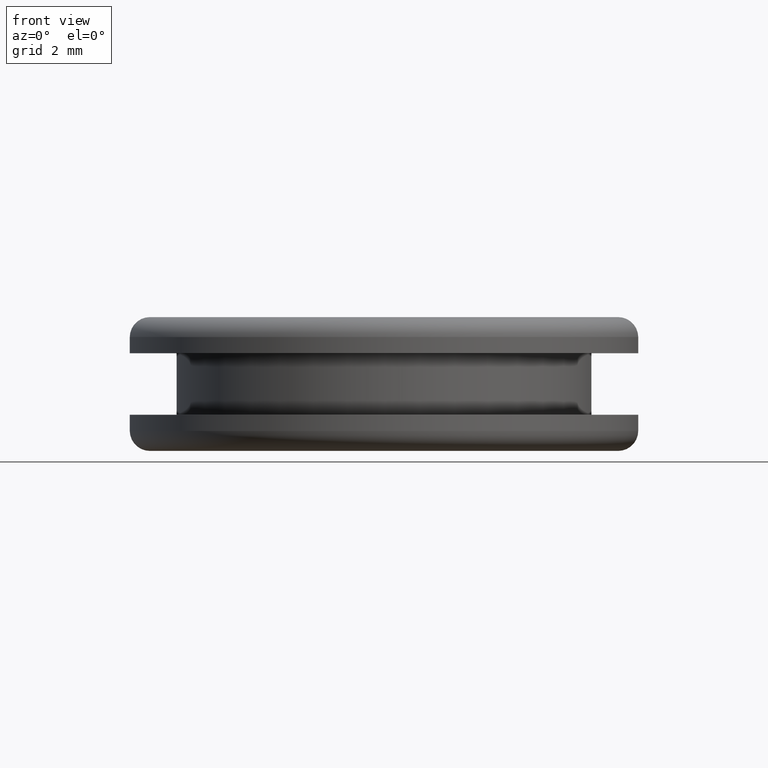
[diagram: clean part render]
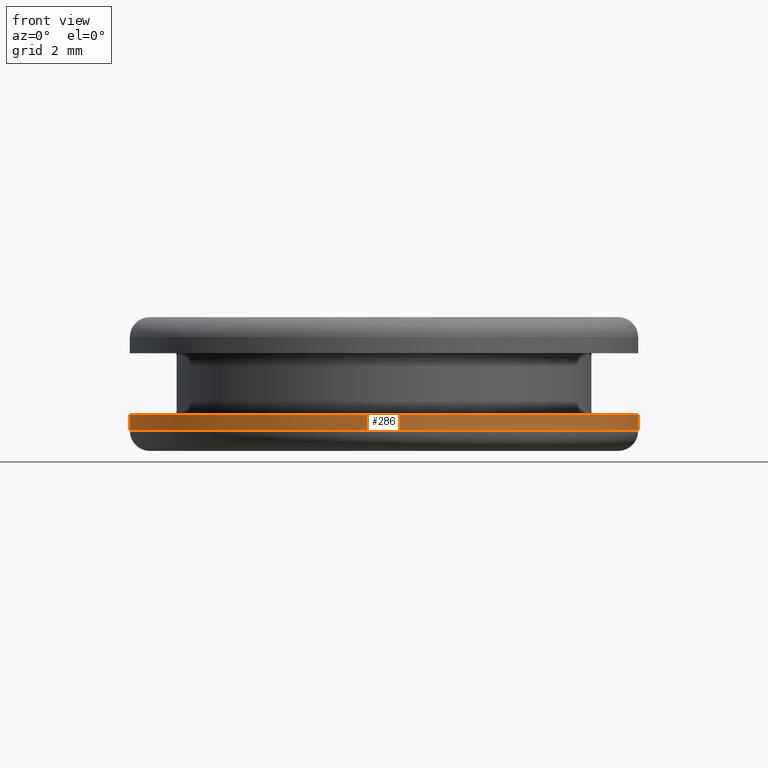
[diagram: same view with one face highlighted and labeled with its STEP entity id]
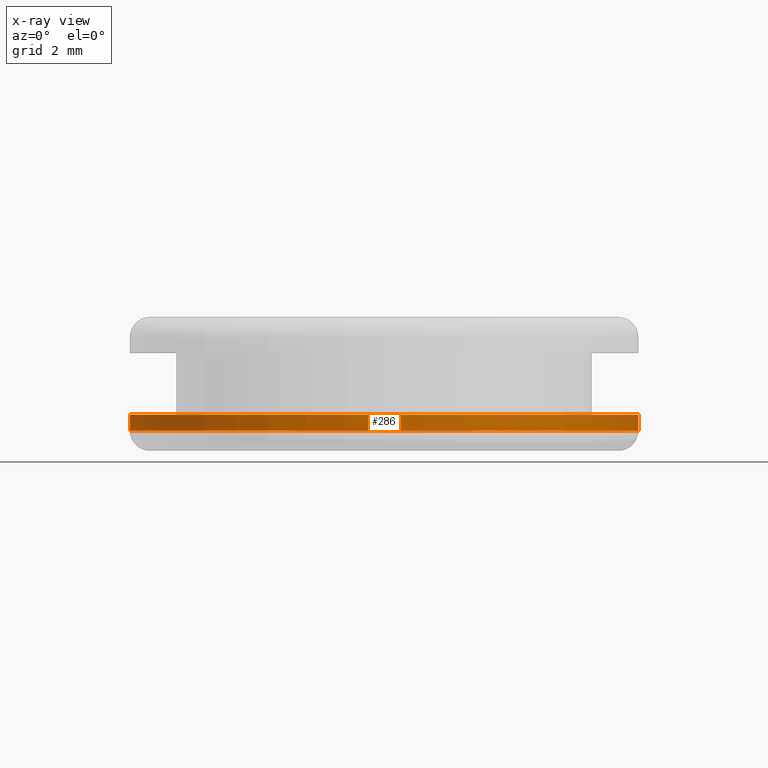
[diagram: x-ray of the same camera — body ghosted, the highlighted face saturated]
A machine part, front view. The second image highlights one B-rep face of the part: STEP entity #286.
The next image is the same camera in x-ray: the body ghosted, the highlighted face saturated — about 0% of this face is hidden behind the body in this view.
In plain terms, the highlighted cylindrical surface (partial cylindrical patch) has radius 9.5 mm, axis along (0, 0, -1).
Its self-contained STEP definition (entity closure, byte-faithful):
#18 = CYLINDRICAL_SURFACE ( 'NONE', #232, 9.499999999876246500 ) ;
#27 = CARTESIAN_POINT ( 'NONE',  ( 115.5608550661926400, 1.163414459174830700E-015, 0.0000000000000000000 ) ) ;
#47 = CARTESIAN_POINT ( 'NONE',  ( 115.5608550661927900, 1.163414459174849600E-015, 139.0502122310740000 ) ) ;
#55 = VECTOR ( 'NONE', #338, 1000.000000000000000 ) ;
#72 = FACE_OUTER_BOUND ( 'NONE', #189, .T. ) ;
#77 = EDGE_CURVE ( 'NONE', #404, #236, #246, .T. ) ;
#79 = DIRECTION ( 'NONE',  ( -1.000000000000000000, 0.0000000000000000000, 0.0000000000000000000 ) ) ;
#102 = EDGE_CURVE ( 'NONE', #391, #354, #237, .T. ) ;
#118 = CARTESIAN_POINT ( 'NONE',  ( 106.0608550663163900, 0.0000000000000000000, 0.0000000000000000000 ) ) ;
#121 = DIRECTION ( 'NONE',  ( 0.0000000000000000000, 0.0000000000000000000, -1.000000000000000000 ) ) ;
#128 = AXIS2_PLACEMENT_3D ( 'NONE', #418, #196, #452 ) ;
#155 = DIRECTION ( 'NONE',  ( 0.0000000000000000000, 0.0000000000000000000, -1.000000000000000000 ) ) ;
#163 = ORIENTED_EDGE ( 'NONE', *, *, #102, .T. ) ;
#167 = ORIENTED_EDGE ( 'NONE', *, *, #351, .F. ) ;
#174 = AXIS2_PLACEMENT_3D ( 'NONE', #344, #121, #383 ) ;
#189 = EDGE_LOOP ( 'NONE', ( #204, #281, #163, #167 ) ) ;
#196 = DIRECTION ( 'NONE',  ( 0.0000000000000000000, 0.0000000000000000000, -1.000000000000000000 ) ) ;
#198 = CARTESIAN_POINT ( 'NONE',  ( 96.56085506644029700, 0.0000000000000000000, 138.4502122310740000 ) ) ;
#204 = ORIENTED_EDGE ( 'NONE', *, *, #77, .F. ) ;
#230 = CARTESIAN_POINT ( 'NONE',  ( 96.56085506644014100, 0.0000000000000000000, 0.0000000000000000000 ) ) ;
#232 = AXIS2_PLACEMENT_3D ( 'NONE', #118, #155, #79 ) ;
#236 = VERTEX_POINT ( 'NONE', #408 ) ;
#237 = LINE ( 'NONE', #230, #403 ) ;
#246 = LINE ( 'NONE', #27, #55 ) ;
#269 = CARTESIAN_POINT ( 'NONE',  ( 96.56085506643999800, 0.0000000000000000000, 139.0502122310740000 ) ) ;
#276 = EDGE_CURVE ( 'NONE', #404, #391, #305, .T. ) ;
#281 = ORIENTED_EDGE ( 'NONE', *, *, #276, .T. ) ;
#286 = ADVANCED_FACE ( 'NONE', ( #72 ), #18, .T. ) ;
#297 = CIRCLE ( 'NONE', #174, 9.499999999876093800 ) ;
#305 = CIRCLE ( 'NONE', #128, 9.499999999876399300 ) ;
#336 = DIRECTION ( 'NONE',  ( 0.0000000000000000000, 0.0000000000000000000, -1.000000000000000000 ) ) ;
#338 = DIRECTION ( 'NONE',  ( 0.0000000000000000000, 0.0000000000000000000, -1.000000000000000000 ) ) ;
#344 = CARTESIAN_POINT ( 'NONE',  ( 106.0608550663163900, 0.0000000000000000000, 138.4502122310740000 ) ) ;
#351 = EDGE_CURVE ( 'NONE', #236, #354, #297, .T. ) ;
#354 = VERTEX_POINT ( 'NONE', #198 ) ;
#383 = DIRECTION ( 'NONE',  ( -1.000000000000000000, 0.0000000000000000000, 0.0000000000000000000 ) ) ;
#391 = VERTEX_POINT ( 'NONE', #269 ) ;
#403 = VECTOR ( 'NONE', #336, 1000.000000000000000 ) ;
#404 = VERTEX_POINT ( 'NONE', #47 ) ;
#408 = CARTESIAN_POINT ( 'NONE',  ( 115.5608550661924900, 1.163414459174820000E-015, 138.4502122310740000 ) ) ;
#418 = CARTESIAN_POINT ( 'NONE',  ( 106.0608550663163900, 0.0000000000000000000, 139.0502122310740000 ) ) ;
#452 = DIRECTION ( 'NONE',  ( -1.000000000000000000, 0.0000000000000000000, 0.0000000000000000000 ) ) ;